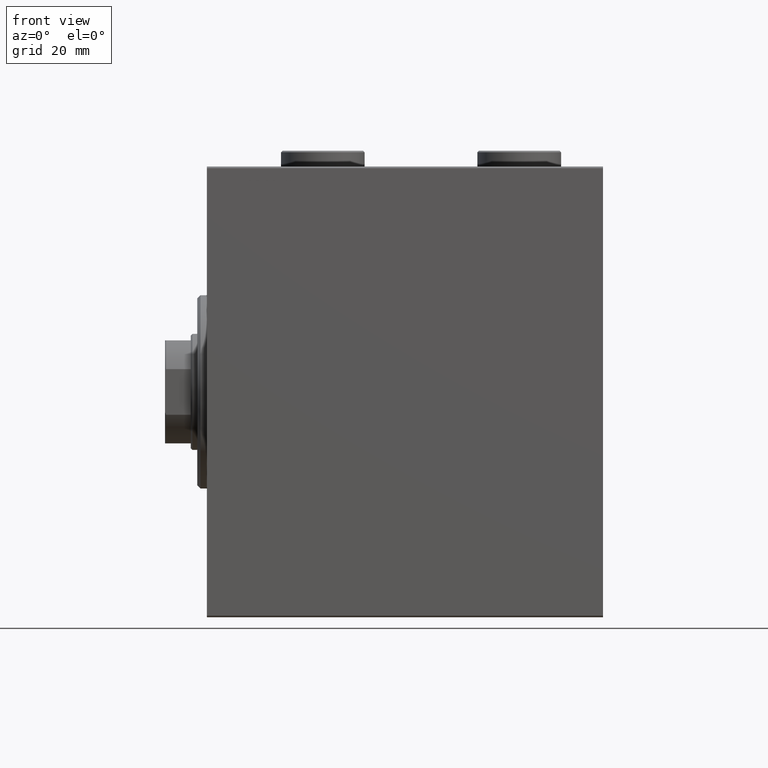
[diagram: clean part render]
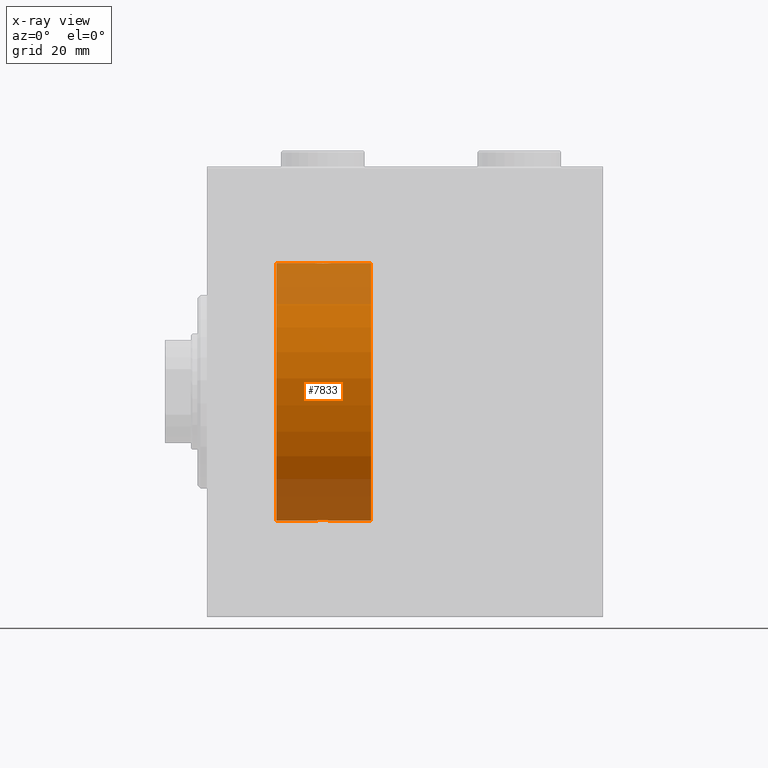
[diagram: x-ray — body ghosted, one internal face saturated and labeled with its STEP entity id]
A machine part, front view, then the same camera in x-ray: the body is ghosted and one INTERNAL B-rep face — a face not visible from any outside direction — is saturated and labeled: STEP entity #7833.
In plain terms, the highlighted cylindrical surface (partial cylindrical patch) has radius 40 mm, axis along (-1, -0, -0).
Its self-contained STEP definition (entity closure, byte-faithful):
#394 = CARTESIAN_POINT ( 'NONE',  ( 36.77455678826340346, -2.904869018727227470, 39.89440043036668726 ) ) ;
#623 = CARTESIAN_POINT ( 'NONE',  ( 36.19560531073085485, -3.000157693440645090, 39.88732948994960026 ) ) ;
#1032 = VERTEX_POINT ( 'NONE', #44467 ) ;
#1071 = CARTESIAN_POINT ( 'NONE',  ( 37.98136279514228875, -2.261082456166712440, 39.93628274425758207 ) ) ;
#2235 = CYLINDRICAL_SURFACE ( 'NONE', #11162, 40.00000000000000000 ) ;
#3174 = CARTESIAN_POINT ( 'NONE',  ( 36.39522483453576029, -2.980272303779541332, -39.88883864243169342 ) ) ;
#3764 = ORIENTED_EDGE ( 'NONE', *, *, #5080, .T. ) ;
#3851 = CARTESIAN_POINT ( 'NONE',  ( 51.00000000000000711, 4.898587196589413026E-15, -40.00000000000000000 ) ) ;
#3874 = EDGE_CURVE ( 'NONE', #43464, #22133, #37501, .T. ) ;
#4071 = CARTESIAN_POINT ( 'NONE',  ( 33.01898122889073761, -0.3904143323715978386, 39.99856256910221219 ) ) ;
#4072 = CARTESIAN_POINT ( 'NONE',  ( 33.30462992291564461, -1.331594428131640528, -39.97823692017208685 ) ) ;
#4301 = CARTESIAN_POINT ( 'NONE',  ( 32.99999999999999289, -1.483452932268112700E-23, 40.00000000000000000 ) ) ;
#4524 = CARTESIAN_POINT ( 'NONE',  ( 34.66775731134134730, -2.695129988695740053, 39.90917164320281785 ) ) ;
#4723 = DIRECTION ( 'NONE',  ( -1.000000000000000000, -0.000000000000000000, -0.000000000000000000 ) ) ;
#5080 = EDGE_CURVE ( 'NONE', #37771, #22022, #20013, .T. ) ;
#6167 = CARTESIAN_POINT ( 'NONE',  ( 21.60000000000000142, 0.000000000000000000, 0.000000000000000000 ) ) ;
#6184 = CARTESIAN_POINT ( 'NONE',  ( 39.00000000000000000, 4.898587181754971267E-15, -40.00000000000000000 ) ) ;
#6864 = CARTESIAN_POINT ( 'NONE',  ( 34.01863720485770415, -2.261082456166700005, -39.93628274425758917 ) ) ;
#7321 = CARTESIAN_POINT ( 'NONE',  ( 39.00000000000000000, -4.750840494920854782E-16, 40.00000000000000000 ) ) ;
#7833 = ADVANCED_FACE ( 'NONE', ( #9606 ), #2235, .F. ) ;
#8001 = CARTESIAN_POINT ( 'NONE',  ( 33.61748319088535908, -1.833695109615714802, -39.95828327492363741 ) ) ;
#9606 = FACE_OUTER_BOUND ( 'NONE', #36760, .T. ) ;
#10102 = CARTESIAN_POINT ( 'NONE',  ( 35.80439468926913804, -3.000157693440631324, -39.88732948994960026 ) ) ;
#10325 = CARTESIAN_POINT ( 'NONE',  ( 34.49911531595966352, -2.604941918888306507, -39.91523680494982784 ) ) ;
#10773 = CARTESIAN_POINT ( 'NONE',  ( 33.09574826348647036, -0.7773146824711030245, 39.99291453282344833 ) ) ;
#11001 = CARTESIAN_POINT ( 'NONE',  ( 32.99999999999999289, 4.605585004310627937E-15, -40.00000000000000000 ) ) ;
#11162 = AXIS2_PLACEMENT_3D ( 'NONE', #13272, #36969, #19493 ) ;
#11351 = ORIENTED_EDGE ( 'NONE', *, *, #26627, .F. ) ;
#11443 = CARTESIAN_POINT ( 'NONE',  ( 33.73902383005257377, -1.981471132463168638, 39.95113231465138881 ) ) ;
#11678 = CARTESIAN_POINT ( 'NONE',  ( 35.60477516546423260, -2.980272303779554210, 39.88883864243167920 ) ) ;
#12116 = CARTESIAN_POINT ( 'NONE',  ( 21.60000000000000142, 0.000000000000000000, 40.00000000000000000 ) ) ;
#12473 = ORIENTED_EDGE ( 'NONE', *, *, #42689, .T. ) ;
#13272 = CARTESIAN_POINT ( 'NONE',  ( 51.00000000000000711, 0.000000000000000000, 0.000000000000000000 ) ) ;
#13301 = DIRECTION ( 'NONE',  ( -1.000000000000000000, 0.000000000000000000, 0.000000000000000000 ) ) ;
#13352 = DIRECTION ( 'NONE',  ( 0.000000000000000000, 0.000000000000000000, 1.000000000000000000 ) ) ;
#13543 = CARTESIAN_POINT ( 'NONE',  ( 37.98461447812278635, -2.258217541132897743, -39.93644519243654400 ) ) ;
#13772 = CARTESIAN_POINT ( 'NONE',  ( 34.67146355253704826, -2.696981015661917613, -39.90904630908468675 ) ) ;
#14663 = CARTESIAN_POINT ( 'NONE',  ( 35.22130476584258219, -2.903766417398241373, 39.89448096967571189 ) ) ;
#15114 = B_SPLINE_CURVE_WITH_KNOTS ( 'NONE', 3,
 ( #4301, #18563, #4071, #10773, #35820, #28680, #31693, #42255, #11443, #25009, #28901, #42926, #4524, #18112, #14663, #11678, #38818, #623, #42706, #394, #32593, #36044, #24786, #39487, #1071, #21786, #21557, #35369, #42486, #25233, #25460, #7321 ),
 .UNSPECIFIED., .F., .F.,
 ( 4, 2, 2, 2, 2, 2, 2, 2, 2, 2, 2, 2, 2, 2, 2, 4 ),
 ( 0.009382660366305094896, 0.009968941372944132434, 0.01055522237958316824, 0.01114150338622220404, 0.01172778439286124158, 0.01231406539950027912, 0.01290034640613931492, 0.01348662741277835073, 0.01407290841941738826, 0.01465918942605642580, 0.01524547043269546161, 0.01583175143933449741, 0.01641803244597353495, 0.01700431345261257249, 0.01759059445925161003, 0.01876315647252968163 ),
 .UNSPECIFIED. ) ;
#15221 = VECTOR ( 'NONE', #4723, 1000.000000000000000 ) ;
#15258 = VECTOR ( 'NONE', #15877, 1000.000000000000000 ) ;
#15314 = CARTESIAN_POINT ( 'NONE',  ( 51.00000000000000711, 0.000000000000000000, 40.00000000000000000 ) ) ;
#15327 = EDGE_CURVE ( 'NONE', #33464, #23691, #15114, .T. ) ;
#15877 = DIRECTION ( 'NONE',  ( -1.000000000000000000, -0.000000000000000000, -0.000000000000000000 ) ) ;
#16082 = DIRECTION ( 'NONE',  ( 0.000000000000000000, 0.000000000000000000, 1.000000000000000000 ) ) ;
#16793 = CARTESIAN_POINT ( 'NONE',  ( 51.00000000000000711, 4.898587196589413026E-15, -40.00000000000000000 ) ) ;
#16821 = VERTEX_POINT ( 'NONE', #40913 ) ;
#16987 = CARTESIAN_POINT ( 'NONE',  ( 38.98101877110926239, -0.3904143323715931757, -39.99856256910221219 ) ) ;
#17023 = DIRECTION ( 'NONE',  ( -1.000000000000000000, 0.000000000000000000, 0.000000000000000000 ) ) ;
#17209 = CARTESIAN_POINT ( 'NONE',  ( 35.60890307490667794, -2.980812880639892359, -39.88879797994688658 ) ) ;
#18112 = CARTESIAN_POINT ( 'NONE',  ( 35.03061658105534093, -2.845855236045346626, 39.89870693240651178 ) ) ;
#18563 = CARTESIAN_POINT ( 'NONE',  ( 32.99999999999998579, -0.1957844162750546346, 39.99999999999999289 ) ) ;
#18941 = EDGE_CURVE ( 'NONE', #22022, #1032, #24237, .T. ) ;
#19493 = DIRECTION ( 'NONE',  ( 0.000000000000000000, 0.000000000000000000, 1.000000000000000000 ) ) ;
#19984 = CARTESIAN_POINT ( 'NONE',  ( 38.84665273013138176, -0.9668189122103333366, -39.98872185468385254 ) ) ;
#20013 = LINE ( 'NONE', #16793, #30931 ) ;
#20259 = CARTESIAN_POINT ( 'NONE',  ( 32.99999999999999289, -1.483452932268112700E-23, 40.00000000000000000 ) ) ;
#20434 = CARTESIAN_POINT ( 'NONE',  ( 37.33224268865864559, -2.695129988695729839, -39.90917164320280364 ) ) ;
#20661 = CARTESIAN_POINT ( 'NONE',  ( 38.90425173651351543, -0.7773146824710984726, -39.99291453282344122 ) ) ;
#20670 = ORIENTED_EDGE ( 'NONE', *, *, #39896, .F. ) ;
#20885 = CARTESIAN_POINT ( 'NONE',  ( 33.74170329679496660, -1.984537326394300250, -39.95097977400577349 ) ) ;
#21557 = CARTESIAN_POINT ( 'NONE',  ( 38.38251680911463382, -1.833695109615725904, 39.95828327492363741 ) ) ;
#21786 = CARTESIAN_POINT ( 'NONE',  ( 38.25829670320502629, -1.984537326394312018, 39.95097977400578060 ) ) ;
#22022 = VERTEX_POINT ( 'NONE', #35144 ) ;
#22133 = VERTEX_POINT ( 'NONE', #12116 ) ;
#22308 = ORIENTED_EDGE ( 'NONE', *, *, #18941, .T. ) ;
#22785 = ORIENTED_EDGE ( 'NONE', *, *, #15327, .T. ) ;
#23444 = CARTESIAN_POINT ( 'NONE',  ( 38.38507600915353635, -1.830402106103512505, -39.95843610133493229 ) ) ;
#23691 = VERTEX_POINT ( 'NONE', #40980 ) ;
#24120 = CARTESIAN_POINT ( 'NONE',  ( 21.60000000000000142, 4.898587196589413026E-15, -40.00000000000000000 ) ) ;
#24237 = B_SPLINE_CURVE_WITH_KNOTS ( 'NONE', 3,
 ( #6184, #45499, #16987, #20661, #19984, #37913, #34696, #23444, #34020, #13543, #34244, #31472, #20434, #31008, #27562, #3174, #41590, #10102, #17209, #31240, #45272, #13772, #10325, #38360, #6864, #20885, #8001, #29134, #4072, #35821, #38585, #11001 ),
 .UNSPECIFIED., .F., .F.,
 ( 4, 2, 2, 2, 2, 2, 2, 2, 2, 2, 2, 2, 2, 2, 2, 4 ),
 ( 0.009382660366305110508, 0.009968941372944146312, 0.01055522237958318212, 0.01114150338622221792, 0.01172778439286125372, 0.01231406539950028953, 0.01290034640613932533, 0.01348662741277836113, 0.01407290841941739694, 0.01465918942605643274, 0.01524547043269546855, 0.01583175143933450435, 0.01641803244597354189, 0.01700431345261257596, 0.01759059445925161003, 0.01876315647252968163 ),
 .UNSPECIFIED. ) ;
#24786 = CARTESIAN_POINT ( 'NONE',  ( 37.50088468404034359, -2.604941918888319385, 39.91523680494982784 ) ) ;
#25009 = CARTESIAN_POINT ( 'NONE',  ( 34.01538552187719233, -2.258217541132904849, 39.93644519243652979 ) ) ;
#25233 = CARTESIAN_POINT ( 'NONE',  ( 38.92026174991647736, -0.7903958539027412522, 39.99381900068937057 ) ) ;
#25239 = DIRECTION ( 'NONE',  ( -1.000000000000000000, -0.000000000000000000, -0.000000000000000000 ) ) ;
#25460 = CARTESIAN_POINT ( 'NONE',  ( 39.00000000000000000, -0.3964922677423686759, 40.00000000000000000 ) ) ;
#25656 = LINE ( 'NONE', #15314, #15221 ) ;
#26627 = EDGE_CURVE ( 'NONE', #33464, #22133, #34033, .T. ) ;
#27562 = CARTESIAN_POINT ( 'NONE',  ( 36.77869523415743913, -2.903766417398228938, -39.89448096967571900 ) ) ;
#27744 = ORIENTED_EDGE ( 'NONE', *, *, #30266, .F. ) ;
#28046 = CARTESIAN_POINT ( 'NONE',  ( 51.00000000000000711, 0.000000000000000000, 0.000000000000000000 ) ) ;
#28389 = CIRCLE ( 'NONE', #40105, 40.00000000000000000 ) ;
#28680 = CARTESIAN_POINT ( 'NONE',  ( 33.30278659419118981, -1.327859336864149364, 39.97836169682016561 ) ) ;
#28901 = CARTESIAN_POINT ( 'NONE',  ( 34.16955177177597847, -2.384933850258112553, 39.92898715513240404 ) ) ;
#29134 = CARTESIAN_POINT ( 'NONE',  ( 33.39811271871507614, -1.506322235190781456, -39.97196309111974699 ) ) ;
#29649 = ORIENTED_EDGE ( 'NONE', *, *, #3874, .T. ) ;
#30130 = CARTESIAN_POINT ( 'NONE',  ( 51.00000000000000711, 0.000000000000000000, 40.00000000000000000 ) ) ;
#30266 = EDGE_CURVE ( 'NONE', #16821, #23691, #25656, .T. ) ;
#30931 = VECTOR ( 'NONE', #37276, 1000.000000000000000 ) ;
#31008 = CARTESIAN_POINT ( 'NONE',  ( 36.96938341894465907, -2.845855236045336856, -39.89870693240651178 ) ) ;
#31240 = CARTESIAN_POINT ( 'NONE',  ( 35.22544321173658943, -2.904869018727217700, -39.89440043036668726 ) ) ;
#31472 = CARTESIAN_POINT ( 'NONE',  ( 37.50443082913466242, -2.602909538701748016, -39.91537030566259148 ) ) ;
#31693 = CARTESIAN_POINT ( 'NONE',  ( 33.39566400087915099, -1.502129635934003948, 39.97212271185185983 ) ) ;
#32593 = CARTESIAN_POINT ( 'NONE',  ( 36.96489325853514885, -2.847401743820463516, 39.89859630624608400 ) ) ;
#33464 = VERTEX_POINT ( 'NONE', #20259 ) ;
#34020 = CARTESIAN_POINT ( 'NONE',  ( 38.26097616994740491, -1.981471132463162643, -39.95113231465139592 ) ) ;
#34033 = LINE ( 'NONE', #30130, #15258 ) ;
#34244 = CARTESIAN_POINT ( 'NONE',  ( 37.83044822822401443, -2.384933850258100119, -39.92898715513241115 ) ) ;
#34696 = CARTESIAN_POINT ( 'NONE',  ( 38.60433599912083480, -1.502129635934000396, -39.97212271185185273 ) ) ;
#35144 = CARTESIAN_POINT ( 'NONE',  ( 39.00000000000000000, 4.898587181754971267E-15, -40.00000000000000000 ) ) ;
#35369 = CARTESIAN_POINT ( 'NONE',  ( 38.60188728128492386, -1.506322235190791226, 39.97196309111975410 ) ) ;
#35594 = LINE ( 'NONE', #3851, #45333 ) ;
#35820 = CARTESIAN_POINT ( 'NONE',  ( 33.15334726986859692, -0.9668189122103379995, 39.98872185468384544 ) ) ;
#35821 = CARTESIAN_POINT ( 'NONE',  ( 33.07973825008353685, -0.7903958539027382546, -39.99381900068937767 ) ) ;
#36044 = CARTESIAN_POINT ( 'NONE',  ( 37.32853644746295885, -2.696981015661930936, 39.90904630908467254 ) ) ;
#36760 = EDGE_LOOP ( 'NONE', ( #20670, #3764, #22308, #12473, #29649, #11351, #22785, #27744 ) ) ;
#36969 = DIRECTION ( 'NONE',  ( -1.000000000000000000, -0.000000000000000000, -0.000000000000000000 ) ) ;
#37276 = DIRECTION ( 'NONE',  ( -1.000000000000000000, -0.000000000000000000, -0.000000000000000000 ) ) ;
#37501 = CIRCLE ( 'NONE', #43353, 40.00000000000000000 ) ;
#37771 = VERTEX_POINT ( 'NONE', #42877 ) ;
#37913 = CARTESIAN_POINT ( 'NONE',  ( 38.69721340580881730, -1.327859336864144035, -39.97836169682019403 ) ) ;
#38360 = CARTESIAN_POINT ( 'NONE',  ( 34.17309815367588754, -2.387636253591812974, -39.92882473497732576 ) ) ;
#38585 = CARTESIAN_POINT ( 'NONE',  ( 32.99999999999998579, -0.3964922677423637909, -39.99999999999998579 ) ) ;
#38818 = CARTESIAN_POINT ( 'NONE',  ( 35.79958713980801832, -2.999840380514748883, 39.88735335562824957 ) ) ;
#39487 = CARTESIAN_POINT ( 'NONE',  ( 37.82690184632409824, -2.387636253591825408, 39.92882473497732576 ) ) ;
#39896 = EDGE_CURVE ( 'NONE', #37771, #16821, #28389, .T. ) ;
#40105 = AXIS2_PLACEMENT_3D ( 'NONE', #28046, #17023, #13352 ) ;
#40913 = CARTESIAN_POINT ( 'NONE',  ( 51.00000000000000711, 0.000000000000000000, 40.00000000000000000 ) ) ;
#40980 = CARTESIAN_POINT ( 'NONE',  ( 39.00000000000000000, -4.750840494920854782E-16, 40.00000000000000000 ) ) ;
#41590 = CARTESIAN_POINT ( 'NONE',  ( 36.20041286019198168, -2.999840380514735116, -39.88735335562824957 ) ) ;
#42255 = CARTESIAN_POINT ( 'NONE',  ( 33.61492399084645655, -1.830402106103517834, 39.95843610133493229 ) ) ;
#42486 = CARTESIAN_POINT ( 'NONE',  ( 38.69537007708435539, -1.331594428131646302, 39.97823692017208685 ) ) ;
#42689 = EDGE_CURVE ( 'NONE', #1032, #43464, #35594, .T. ) ;
#42706 = CARTESIAN_POINT ( 'NONE',  ( 36.39109692509332916, -2.980812880639903906, 39.88879797994688658 ) ) ;
#42877 = CARTESIAN_POINT ( 'NONE',  ( 51.00000000000000711, 4.898587196589413026E-15, -40.00000000000000000 ) ) ;
#42926 = CARTESIAN_POINT ( 'NONE',  ( 34.49556917086534469, -2.602909538701760450, 39.91537030566259148 ) ) ;
#43353 = AXIS2_PLACEMENT_3D ( 'NONE', #6167, #13301, #16082 ) ;
#43464 = VERTEX_POINT ( 'NONE', #24120 ) ;
#44467 = CARTESIAN_POINT ( 'NONE',  ( 32.99999999999999289, 4.605585004310627937E-15, -40.00000000000000000 ) ) ;
#45272 = CARTESIAN_POINT ( 'NONE',  ( 35.03510674146484405, -2.847401743820449305, -39.89859630624607689 ) ) ;
#45333 = VECTOR ( 'NONE', #25239, 1000.000000000000000 ) ;
#45499 = CARTESIAN_POINT ( 'NONE',  ( 38.99999999999999289, -0.1957844162750510819, -40.00000000000000711 ) ) ;